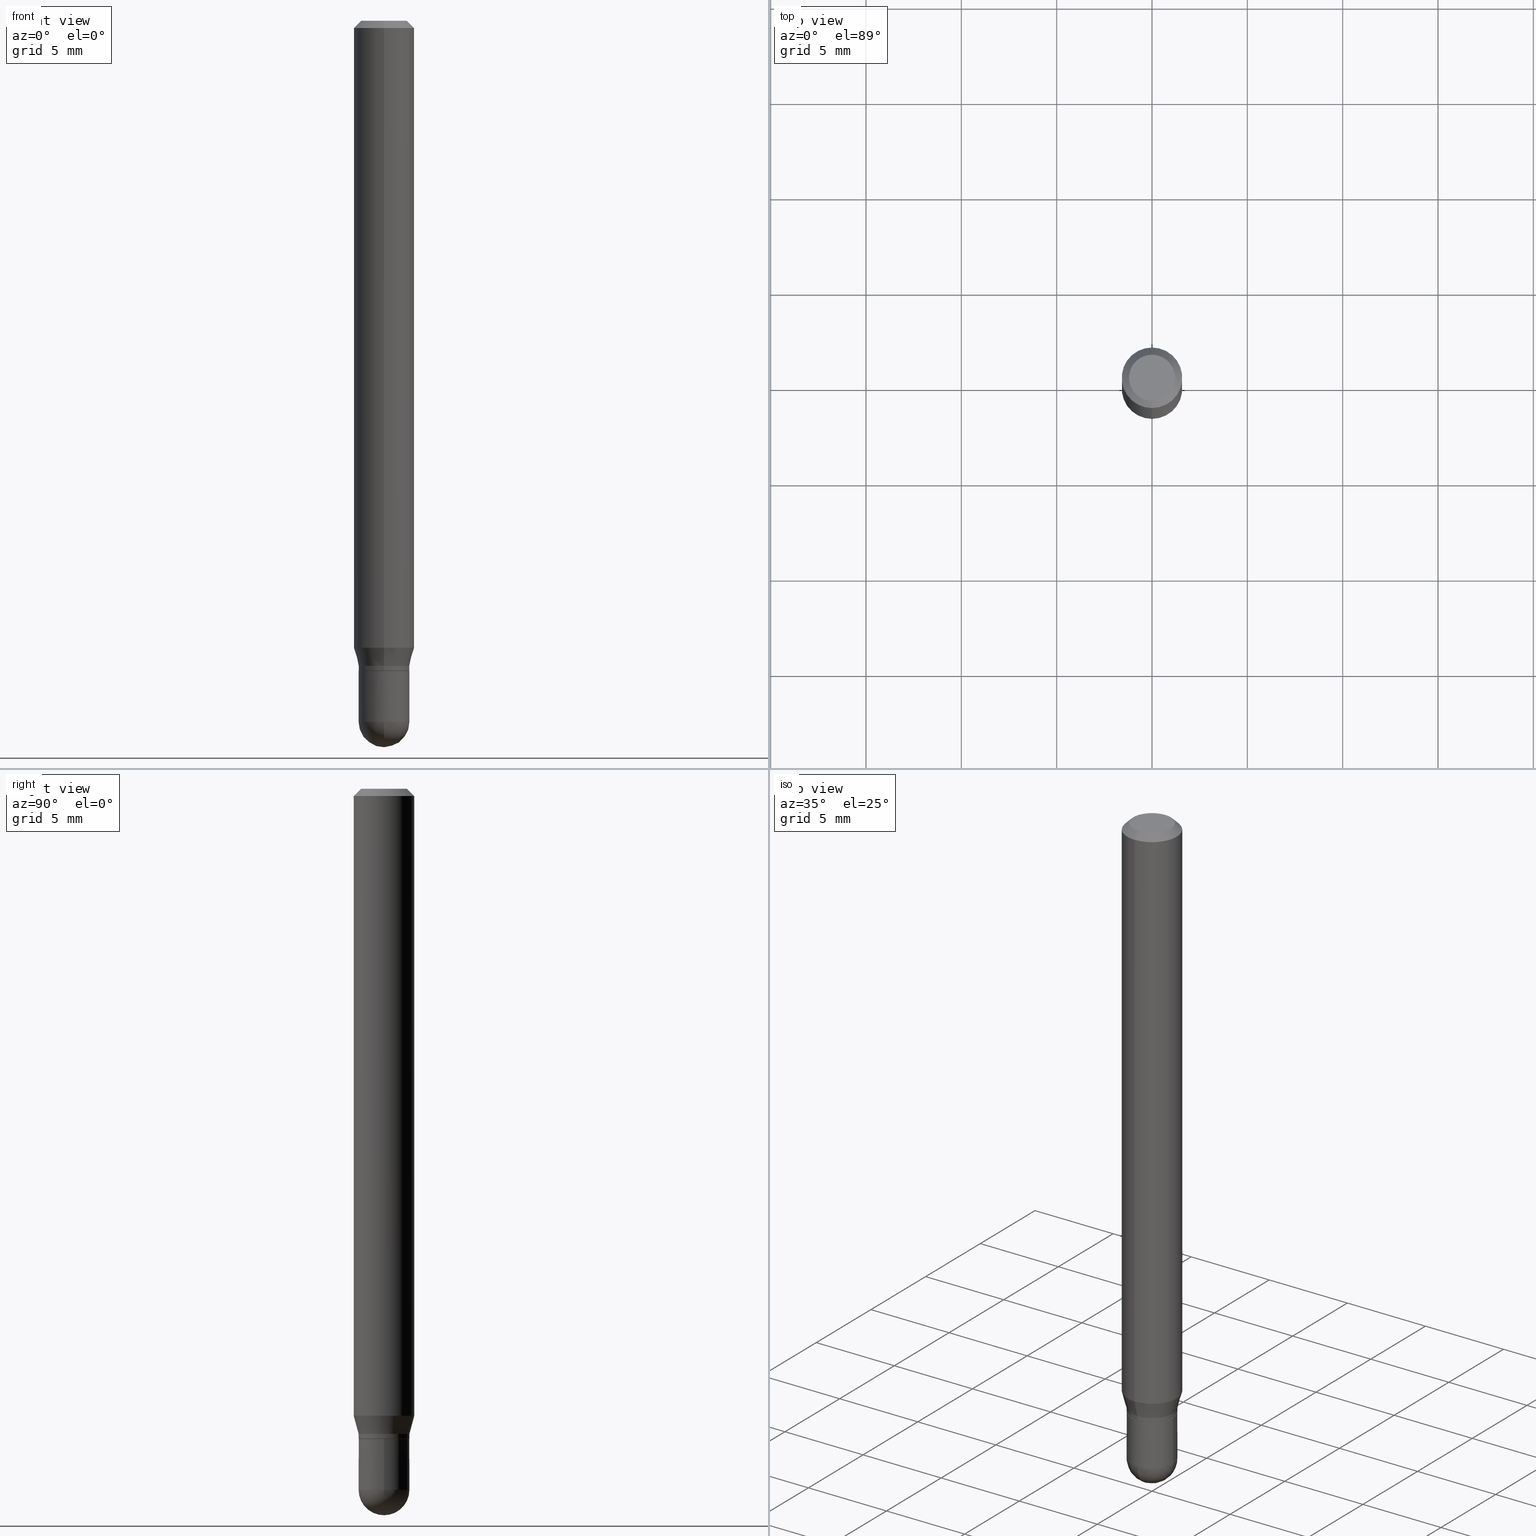
[diagram: canonical four-view strip — front | top / right | iso, engineering-drawing reading convention]
A machine part, canonical four-view strip (front | top / right | iso — engineering-drawing reading convention). The complete STEP part file that produces these views, byte-faithful:
ISO-10303-21;
HEADER;
FILE_DESCRIPTION (( 'STEP AP203' ),
    '1' );
FILE_NAME ('00735.STEP',
    '2024-03-07T18:09:48',
    ( '' ),
    ( '' ),
    'SwSTEP 2.0',
    'SolidWorks 2023',
    '' );
FILE_SCHEMA (( 'CONFIG_CONTROL_DESIGN' ));
ENDSEC;

DATA;
#1 = DIRECTION ( 'NONE',  ( -6.982962677686266711E-15, -1.000000000000000000, 5.253553833969737838E-15 ) ) ;
#2 = ORIENTED_EDGE ( 'NONE', *, *, #124, .F. ) ;
#3 = CARTESIAN_POINT ( 'NONE',  ( 0.000000000000000000, 0.000000000000000000, 0.000000000000000000 ) ) ;
#4 = CARTESIAN_POINT ( 'NONE',  ( 3.316907271900976096E-16, 0.04749999999999999362, -1.702721195745355787E-16 ) ) ;
#5 = ORIENTED_EDGE ( 'NONE', *, *, #448, .F. ) ;
#6 = DIRECTION ( 'NONE',  ( -6.982962677686266711E-15, -1.000000000000000000, 5.203519987931938617E-15 ) ) ;
#7 = ORIENTED_EDGE ( 'NONE', *, *, #29, .F. ) ;
#8 = AXIS2_PLACEMENT_3D ( 'NONE', #260, #219, #420 ) ;
#9 = PRODUCT_DEFINITION_FORMATION_WITH_SPECIFIED_SOURCE ( 'ANY', '', #250, .NOT_KNOWN. ) ;
#10 = CC_DESIGN_PERSON_AND_ORGANIZATION_ASSIGNMENT ( #265, #234, ( #9 ) ) ;
#11 = DIRECTION ( 'NONE',  ( -2.445568885019191806E-29, 3.491338020256645256E-15, 1.000000000000000000 ) ) ;
#12 = ORIENTED_EDGE ( 'NONE', *, *, #430, .F. ) ;
#13 = DIRECTION ( 'NONE',  ( -4.851104656540964275E-15, -0.7071067811865500152, -0.7071067811865450192 ) ) ;
#14 = VERTEX_POINT ( 'NONE', #481 ) ;
#15 = DIRECTION ( 'NONE',  ( -2.445568885019191806E-29, 3.491338020256645256E-15, 1.000000000000000000 ) ) ;
#16 = ORIENTED_EDGE ( 'NONE', *, *, #82, .T. ) ;
#17 = ADVANCED_FACE ( 'NONE', ( #282 ), #302, .T. ) ;
#18 = AXIS2_PLACEMENT_3D ( 'NONE', #505, #409, #331 ) ;
#19 = CIRCLE ( 'NONE', #90, 0.05249999999999991479 ) ;
#20 = DIRECTION ( 'NONE',  ( -6.982962677686266711E-15, -1.000000000000000000, 3.491338020256645651E-15 ) ) ;
#21 = DIRECTION ( 'NONE',  ( -6.982962677686266711E-15, -1.000000000000000000, 3.491338020256645651E-15 ) ) ;
#22 = DIRECTION ( 'NONE',  ( -2.445568885019191526E-29, 3.491338020256645256E-15, 1.000000000000000000 ) ) ;
#23 = APPROVAL ( #308, 'UNSPECIFIED' ) ;
#24 = DIRECTION ( 'NONE',  ( 1.839019923739591243E-15, 0.2588190451025236816, 0.9659258262890674240 ) ) ;
#25 = PERSON_AND_ORGANIZATION ( #397, #382 ) ;
#26 = CIRCLE ( 'NONE', #64, 0.04749999999999999362 ) ;
#27 = CIRCLE ( 'NONE', #390, 0.06250000000000000000 ) ;
#28 = DIRECTION ( 'NONE',  ( -4.937700262164674260E-15, -0.7071067811865632269, 0.7071067811865319186 ) ) ;
#29 = EDGE_CURVE ( 'NONE', #329, #239, #380, .T. ) ;
#30 = PERSON_AND_ORGANIZATION ( #397, #382 ) ;
#31 = CC_DESIGN_APPROVAL ( #467, ( #71 ) ) ;
#32 = DIRECTION ( 'NONE',  ( -2.445568885019191806E-29, 3.491338020256645256E-15, 1.000000000000000000 ) ) ;
#33 = ORIENTED_EDGE ( 'NONE', *, *, #223, .F. ) ;
#34 = VERTEX_POINT ( 'NONE', #459 ) ;
#35 = EDGE_CURVE ( 'NONE', #478, #251, #97, .T. ) ;
#36 = MANIFOLD_SOLID_BREP ( 'Body-Move/Copy2[1]', #366 ) ;
#37 = VERTEX_POINT ( 'NONE', #464 ) ;
#38 = AXIS2_PLACEMENT_3D ( 'NONE', #427, #463, #270 ) ;
#39 = CC_DESIGN_APPROVAL ( #51, ( #9 ) ) ;
#40 = VERTEX_POINT ( 'NONE', #91 ) ;
#41 = CARTESIAN_POINT ( 'NONE',  ( 3.665958397768609631E-29, -5.240436706112481047E-15, -1.500000000000000222 ) ) ;
#42 = ORIENTED_EDGE ( 'NONE', *, *, #116, .F. ) ;
#43 = DIRECTION ( 'NONE',  ( -2.445468806185136597E-29, 3.491481338843145583E-15, 1.000000000000000000 ) ) ;
#44 = EDGE_CURVE ( 'NONE', #37, #40, #460, .T. ) ;
#45 = CARTESIAN_POINT ( 'NONE',  ( 4.440892098500625669E-16, 0.06250000000000000000, -2.182086262660403285E-16 ) ) ;
#46 = LINE ( 'NONE', #363, #263 ) ;
#47 = VECTOR ( 'NONE', #24, 39.37007874015748143 ) ;
#48 = DIRECTION ( 'NONE',  ( 2.445568885019191806E-29, -3.491338020256645256E-15, -1.000000000000000000 ) ) ;
#49 = EDGE_LOOP ( 'NONE', ( #247, #351, #80, #491 ) ) ;
#50 = ORIENTED_EDGE ( 'NONE', *, *, #167, .T. ) ;
#51 = APPROVAL ( #343, 'UNSPECIFIED' ) ;
#52 = DIRECTION ( 'NONE',  ( -6.982962677686265922E-15, -1.000000000000000000, 3.483106191921935554E-15 ) ) ;
#53 = EDGE_LOOP ( 'NONE', ( #318, #369, #388, #470 ) ) ;
#54 = AXIS2_PLACEMENT_3D ( 'NONE', #228, #288, #267 ) ;
#55 = VECTOR ( 'NONE', #28, 39.37007874015748143 ) ;
#56 = ORIENTED_EDGE ( 'NONE', *, *, #44, .T. ) ;
#57 = DIRECTION ( 'NONE',  ( -6.982962677686265922E-15, -1.000000000000000000, 5.203519987931939406E-15 ) ) ;
#58 = ORIENTED_EDGE ( 'NONE', *, *, #506, .F. ) ;
#59 = CALENDAR_DATE ( 2024, 7, 3 ) ;
#60 = DIRECTION ( 'NONE',  ( -6.982962677686266711E-15, -1.000000000000000000, 3.491338020256645651E-15 ) ) ;
#61 = LINE ( 'NONE', #493, #170 ) ;
#62 = CARTESIAN_POINT ( 'NONE',  ( -3.631140592396529715E-16, -0.05200000000000468137, -1.341999999999999860 ) ) ;
#63 = CARTESIAN_POINT ( 'NONE',  ( 3.840629472727447874E-16, 0.04749999999999999362, -1.747056831868805136E-16 ) ) ;
#64 = AXIS2_PLACEMENT_3D ( 'NONE', #299, #15, #20 ) ;
#65 = LOCAL_TIME ( 13, 9, 48.00000000000000000, #179 ) ;
#66 = ADVANCED_FACE ( 'NONE', ( #342 ), #414, .T. ) ;
#67 = DIMENSIONAL_EXPONENTS ( 1.000000000000000000, 0.000000000000000000, 0.000000000000000000, 0.000000000000000000, 0.000000000000000000, 0.000000000000000000, 0.000000000000000000 ) ;
#68 = CARTESIAN_POINT ( 'NONE',  ( 3.668353327528789828E-31, -5.237007030384970941E-17, -0.01500000000000000812 ) ) ;
#69 = AXIS2_PLACEMENT_3D ( 'NONE', #413, #102, #138 ) ;
#70 = CIRCLE ( 'NONE', #402, 0.06250000000000000000 ) ;
#71 = PRODUCT_DEFINITION ( 'UNKNOWN', '', #9, #236 ) ;
#72 = VERTEX_POINT ( 'NONE', #424 ) ;
#73 = DIRECTION ( 'NONE',  ( -6.982962677686266711E-15, -1.000000000000000000, 5.253553833969737838E-15 ) ) ;
#74 = ORIENTED_EDGE ( 'NONE', *, *, #506, .T. ) ;
#75 = DIRECTION ( 'NONE',  ( 2.445568885019191245E-29, -3.491338020256645256E-15, -1.000000000000000000 ) ) ;
#76 = VERTEX_POINT ( 'NONE', #63 ) ;
#77 = CARTESIAN_POINT ( 'NONE',  ( 3.166227881522550846E-29, -4.520163734201902903E-15, -1.294679491924310977 ) ) ;
#78 = CLOSED_SHELL ( 'NONE', ( #175, #232, #17, #305, #160, #193, #86, #333, #240, #489, #217, #268 ) ) ;
#79 = AXIS2_PLACEMENT_3D ( 'NONE', #77, #11, #81 ) ;
#80 = ORIENTED_EDGE ( 'NONE', *, *, #285, .F. ) ;
#81 = DIRECTION ( 'NONE',  ( -6.982962677686265922E-15, -1.000000000000000000, 4.370956789862821150E-15 ) ) ;
#82 = EDGE_CURVE ( 'NONE', #209, #478, #61, .T. ) ;
#83 = CARTESIAN_POINT ( 'NONE',  ( -3.666055405785283712E-16, -0.05249999999999990785, 1.832952460634735762E-16 ) ) ;
#84 = CARTESIAN_POINT ( 'NONE',  ( 3.539816096952984843E-29, -5.053919237975452413E-15, -1.447499999999999787 ) ) ;
#85 = VECTOR ( 'NONE', #457, 39.37007874015748143 ) ;
#86 = ADVANCED_FACE ( 'NONE', ( #145 ), #298, .T. ) ;
#87 = DIRECTION ( 'NONE',  ( -2.445568885019191806E-29, 3.491338020256645256E-15, 1.000000000000000000 ) ) ;
#88 = DIRECTION ( 'NONE',  ( -2.445568885019191806E-29, 3.491338020256645256E-15, 1.000000000000000000 ) ) ;
#89 = VERTEX_POINT ( 'NONE', #222 ) ;
#90 = AXIS2_PLACEMENT_3D ( 'NONE', #122, #482, #6 ) ;
#91 = CARTESIAN_POINT ( 'NONE',  ( -0.05249999999999999806, -4.496708661077424547E-15, -1.447499999999999787 ) ) ;
#92 = CARTESIAN_POINT ( 'NONE',  ( -0.05249999999999999806, -4.496708661077424547E-15, -1.342000000000000082 ) ) ;
#93 = CC_DESIGN_PERSON_AND_ORGANIZATION_ASSIGNMENT ( #261, #100, ( #9 ) ) ;
#94 = CALENDAR_DATE ( 2024, 7, 3 ) ;
#95 = DIRECTION ( 'NONE',  ( -2.445568885019191806E-29, 3.491338020256645256E-15, 1.000000000000000000 ) ) ;
#96 =( NAMED_UNIT ( * ) SI_UNIT ( $, .STERADIAN. ) SOLID_ANGLE_UNIT ( ) );
#97 = LINE ( 'NONE', #190, #233 ) ;
#98 = AXIS2_PLACEMENT_3D ( 'NONE', #214, #131, #286 ) ;
#99 = EDGE_CURVE ( 'NONE', #76, #34, #346, .T. ) ;
#100 = PERSON_AND_ORGANIZATION_ROLE ( 'creator' ) ;
#101 = AXIS2_PLACEMENT_3D ( 'NONE', #3, #317, #184 ) ;
#102 = DIRECTION ( 'NONE',  ( -2.445568885019191806E-29, 3.491338020256645256E-15, 1.000000000000000000 ) ) ;
#103 = APPROVAL_ROLE ( '' ) ;
#104 =( LENGTH_UNIT ( ) NAMED_UNIT ( * ) SI_UNIT ( $, .METRE. ) );
#105 = COORDINATED_UNIVERSAL_TIME_OFFSET ( 5, 0, .BEHIND. ) ;
#106 = CC_DESIGN_DATE_AND_TIME_ASSIGNMENT ( #428, #229, ( #128 ) ) ;
#107 =( CONVERSION_BASED_UNIT ( 'INCH', #151 ) LENGTH_UNIT ( ) NAMED_UNIT ( #67 ) );
#108 = ORIENTED_EDGE ( 'NONE', *, *, #29, .T. ) ;
#109 = AXIS2_PLACEMENT_3D ( 'NONE', #307, #189, #423 ) ;
#110 = FACE_OUTER_BOUND ( 'NONE', #385, .T. ) ;
#111 = ORIENTED_EDGE ( 'NONE', *, *, #257, .F. ) ;
#112 = PLANE ( 'NONE',  #117 ) ;
#113 = ORIENTED_EDGE ( 'NONE', *, *, #116, .T. ) ;
#114 = CARTESIAN_POINT ( 'NONE',  ( 3.668353327528789828E-31, -5.237007030384970941E-17, -0.01500000000000000812 ) ) ;
#115 = VERTEX_POINT ( 'NONE', #458 ) ;
#116 = EDGE_CURVE ( 'NONE', #76, #194, #136, .T. ) ;
#117 = AXIS2_PLACEMENT_3D ( 'NONE', #4, #75, #119 ) ;
#118 = VECTOR ( 'NONE', #141, 39.37007874015748143 ) ;
#119 = DIRECTION ( 'NONE',  ( 6.982962677686265922E-15, 1.000000000000000000, -3.491338020256645256E-15 ) ) ;
#120 = ORIENTED_EDGE ( 'NONE', *, *, #291, .F. ) ;
#121 = DIRECTION ( 'NONE',  ( 6.982962677686265922E-15, 1.000000000000000000, 0.000000000000000000 ) ) ;
#122 = CARTESIAN_POINT ( 'NONE',  ( 3.280730659253245704E-29, -4.683629954174290565E-15, -1.341500000000000137 ) ) ;
#123 = ORIENTED_EDGE ( 'NONE', *, *, #134, .T. ) ;
#124 = EDGE_CURVE ( 'NONE', #115, #209, #367, .T. ) ;
#125 = CARTESIAN_POINT ( 'NONE',  ( 3.281953443695754904E-29, -4.685375623184418108E-15, -1.342000000000000082 ) ) ;
#126 = EDGE_LOOP ( 'NONE', ( #7, #508, #218, #195 ) ) ;
#127 = CONICAL_SURFACE ( 'NONE', #417, 0.05199999999999999067, 0.7853981633974739252 ) ;
#128 = SECURITY_CLASSIFICATION ( '', '', #474 ) ;
#129 = ORIENTED_EDGE ( 'NONE', *, *, #319, .T. ) ;
#130 = CYLINDRICAL_SURFACE ( 'NONE', #327, 0.05249999999999990785 ) ;
#131 = DIRECTION ( 'NONE',  ( -2.445568885019191806E-29, 3.491338020256645256E-15, 1.000000000000000000 ) ) ;
#132 = DIRECTION ( 'NONE',  ( -6.982962677686265922E-15, -1.000000000000000000, 5.203519987931939406E-15 ) ) ;
#133 = ORIENTED_EDGE ( 'NONE', *, *, #134, .F. ) ;
#134 = EDGE_CURVE ( 'NONE', #251, #34, #146, .T. ) ;
#135 = PERSON_AND_ORGANIZATION_ROLE ( 'design_owner' ) ;
#136 = CIRCLE ( 'NONE', #18, 0.04749999999999999362 ) ;
#137 = VECTOR ( 'NONE', #162, 39.37007874015748143 ) ;
#138 = DIRECTION ( 'NONE',  ( -6.982962677686265922E-15, -1.000000000000000000, 3.491338020256645256E-15 ) ) ;
#139 = DATE_AND_TIME ( #94, #334 ) ;
#140 = CC_DESIGN_PERSON_AND_ORGANIZATION_ASSIGNMENT ( #143, #135, ( #250 ) ) ;
#141 = DIRECTION ( 'NONE',  ( -2.445568885019191526E-29, 3.491338020256645256E-15, 1.000000000000000000 ) ) ;
#142 = ORIENTED_EDGE ( 'NONE', *, *, #182, .T. ) ;
#143 = PERSON_AND_ORGANIZATION ( #397, #382 ) ;
#144 = CARTESIAN_POINT ( 'NONE',  ( 3.281953443695754904E-29, -4.685375623184418108E-15, -1.342000000000000082 ) ) ;
#145 = FACE_OUTER_BOUND ( 'NONE', #469, .T. ) ;
#146 = CIRCLE ( 'NONE', #471, 0.06250000000000000000 ) ;
#147 = AXIS2_PLACEMENT_3D ( 'NONE', #243, #321, #121 ) ;
#148 = COORDINATED_UNIVERSAL_TIME_OFFSET ( 5, 0, .BEHIND. ) ;
#149 = CARTESIAN_POINT ( 'NONE',  ( 3.281953443695754904E-29, -4.685375623184418108E-15, -1.342000000000000082 ) ) ;
#150 = PERSON_AND_ORGANIZATION_ROLE ( 'classification_officer' ) ;
#151 = LENGTH_MEASURE_WITH_UNIT ( LENGTH_MEASURE( 0.02539999999999999897 ), #104 );
#152 = ORIENTED_EDGE ( 'NONE', *, *, #475, .T. ) ;
#153 = MECHANICAL_CONTEXT ( 'NONE', #206, 'mechanical' ) ;
#154 = VERTEX_POINT ( 'NONE', #92 ) ;
#155 = AXIS2_PLACEMENT_3D ( 'NONE', #254, #370, #21 ) ;
#156 = CIRCLE ( 'NONE', #303, 0.05199999999999999067 ) ;
#157 = CARTESIAN_POINT ( 'NONE',  ( 3.730349362740854201E-16, 0.05249999999999532818, -1.341500000000000359 ) ) ;
#158 = ORIENTED_EDGE ( 'NONE', *, *, #364, .T. ) ;
#159 = DIRECTION ( 'NONE',  ( -6.982962677686265922E-15, -1.000000000000000000, 3.483106191921935554E-15 ) ) ;
#160 = ADVANCED_FACE ( 'NONE', ( #455 ), #252, .T. ) ;
#161 = ORIENTED_EDGE ( 'NONE', *, *, #223, .T. ) ;
#162 = DIRECTION ( 'NONE',  ( -2.445568885019191526E-29, 3.491338020256645256E-15, 1.000000000000000000 ) ) ;
#163 = ORIENTED_EDGE ( 'NONE', *, *, #99, .F. ) ;
#164 = CARTESIAN_POINT ( 'NONE',  ( 3.535326473934793753E-29, -5.060348633670977366E-15, -1.447500000000000009 ) ) ;
#165 = AXIS2_PLACEMENT_3D ( 'NONE', #349, #509, #473 ) ;
#166 = CARTESIAN_POINT ( 'NONE',  ( 3.166227881522550846E-29, -4.520163734201902903E-15, -1.294679491924310977 ) ) ;
#167 = EDGE_CURVE ( 'NONE', #72, #239, #216, .T. ) ;
#168 = FACE_OUTER_BOUND ( 'NONE', #272, .T. ) ;
#169 = ORIENTED_EDGE ( 'NONE', *, *, #340, .F. ) ;
#170 = VECTOR ( 'NONE', #501, 39.37007874015748143 ) ;
#171 = AXIS2_PLACEMENT_3D ( 'NONE', #315, #48, #204 ) ;
#172 = CC_DESIGN_SECURITY_CLASSIFICATION ( #128, ( #9 ) ) ;
#173 = CARTESIAN_POINT ( 'NONE',  ( 3.257497754845563606E-29, -4.650462242981852244E-15, -1.332000000000000073 ) ) ;
#174 = ORIENTED_EDGE ( 'NONE', *, *, #383, .T. ) ;
#175 = ADVANCED_FACE ( 'NONE', ( #446 ), #450, .T. ) ;
#176 = CARTESIAN_POINT ( 'NONE',  ( -3.631140592396529715E-16, -0.05200000000000468137, -1.341999999999999860 ) ) ;
#177 = VERTEX_POINT ( 'NONE', #176 ) ;
#178 = CARTESIAN_POINT ( 'NONE',  ( 4.364351673553919652E-16, 0.06249999999999995143, -0.01500000000000022669 ) ) ;
#179 = COORDINATED_UNIVERSAL_TIME_OFFSET ( 5, 0, .BEHIND. ) ;
#180 = DIRECTION ( 'NONE',  ( -6.982962677686265922E-15, -1.000000000000000000, 5.203519987931939406E-15 ) ) ;
#181 = AXIS2_PLACEMENT_3D ( 'NONE', #164, #248, #389 ) ;
#182 = EDGE_CURVE ( 'NONE', #194, #76, #26, .T. ) ;
#183 = CARTESIAN_POINT ( 'NONE',  ( 3.281819137900453057E-29, -4.685567956727500961E-15, -1.342000000000000082 ) ) ;
#184 = DIRECTION ( 'NONE',  ( 1.000000000000000000, -6.982962677686265922E-15, 4.876176775795935232E-29 ) ) ;
#185 = CARTESIAN_POINT ( 'NONE',  ( 0.000000000000000000, 0.000000000000000000, 0.000000000000000000 ) ) ;
#186 = DIRECTION ( 'NONE',  ( -2.445568885019191526E-29, 3.491338020256645256E-15, 1.000000000000000000 ) ) ;
#187 = DATE_AND_TIME ( #377, #487 ) ;
#188 = DATE_TIME_ROLE ( 'creation_date' ) ;
#189 = DIRECTION ( 'NONE',  ( -2.445468806185136597E-29, 3.491481338843145583E-15, 1.000000000000000000 ) ) ;
#190 = CARTESIAN_POINT ( 'NONE',  ( -4.364351673553916201E-16, -0.06250000000000000000, 2.182086262660403285E-16 ) ) ;
#191 = APPROVAL_PERSON_ORGANIZATION ( #453, #467, #221 ) ;
#192 = CARTESIAN_POINT ( 'NONE',  ( 3.730349362740518935E-16, 0.05249999999999990785, -1.832952460634735762E-16 ) ) ;
#193 = ADVANCED_FACE ( 'NONE', ( #168 ), #344, .T. ) ;
#194 = VERTEX_POINT ( 'NONE', #410 ) ;
#195 = ORIENTED_EDGE ( 'NONE', *, *, #383, .F. ) ;
#196 = CARTESIAN_POINT ( 'NONE',  ( -3.730349362740171836E-16, -0.05250000000000507733, -1.447499999999999565 ) ) ;
#197 = ORIENTED_EDGE ( 'NONE', *, *, #340, .T. ) ;
#198 = CARTESIAN_POINT ( 'NONE',  ( 3.535326473934793753E-29, -5.060348633670977366E-15, -1.447500000000000009 ) ) ;
#199 = APPROVAL_PERSON_ORGANIZATION ( #425, #23, #416 ) ;
#200 = EDGE_CURVE ( 'NONE', #115, #89, #220, .T. ) ;
#201 = ORIENTED_EDGE ( 'NONE', *, *, #511, .T. ) ;
#202 = SPHERICAL_SURFACE ( 'NONE', #181, 0.05250000000000002581 ) ;
#203 = EDGE_LOOP ( 'NONE', ( #12, #42, #387, #213 ) ) ;
#204 = DIRECTION ( 'NONE',  ( 6.982962677686265922E-15, 1.000000000000000000, -3.483106191921935554E-15 ) ) ;
#205 = DIRECTION ( 'NONE',  ( -2.445568885019191806E-29, 3.491338020256645256E-15, 1.000000000000000000 ) ) ;
#206 = APPLICATION_CONTEXT ( 'configuration controlled 3d designs of mechanical parts and assemblies' ) ;
#207 = CC_DESIGN_PERSON_AND_ORGANIZATION_ASSIGNMENT ( #30, #150, ( #128 ) ) ;
#208 = DIRECTION ( 'NONE',  ( -2.445468806185136877E-29, 3.491481338843145188E-15, 1.000000000000000000 ) ) ;
#209 = VERTEX_POINT ( 'NONE', #332 ) ;
#210 = CIRCLE ( 'NONE', #224, 0.05250000000000002581 ) ;
#211 = DIRECTION ( 'NONE',  ( -1.000000000000000000, 7.105427357601001070E-15, -4.926315508542082329E-29 ) ) ;
#212 = CARTESIAN_POINT ( 'NONE',  ( 3.280730659253245704E-29, -4.683629954174290565E-15, -1.341500000000000137 ) ) ;
#213 = ORIENTED_EDGE ( 'NONE', *, *, #448, .T. ) ;
#214 = CARTESIAN_POINT ( 'NONE',  ( 3.257497754845563606E-29, -4.650462242981852244E-15, -1.332000000000000073 ) ) ;
#215 = EDGE_LOOP ( 'NONE', ( #486, #435, #129, #244, #58 ) ) ;
#216 = CIRCLE ( 'NONE', #444, 0.05249999999999991479 ) ;
#217 = ADVANCED_FACE ( 'NONE', ( #295 ), #502, .T. ) ;
#218 = ORIENTED_EDGE ( 'NONE', *, *, #476, .T. ) ;
#219 = DIRECTION ( 'NONE',  ( -2.445468806185136597E-29, 3.491481338843145583E-15, 1.000000000000000000 ) ) ;
#220 = LINE ( 'NONE', #373, #47 ) ;
#221 = APPROVAL_ROLE ( '' ) ;
#222 = CARTESIAN_POINT ( 'NONE',  ( 4.440892098500943678E-16, 0.06249999999999550360, -1.294679491924311199 ) ) ;
#223 = EDGE_CURVE ( 'NONE', #309, #154, #241, .T. ) ;
#224 = AXIS2_PLACEMENT_3D ( 'NONE', #198, #211, #246 ) ;
#225 = APPROVAL_DATE_TIME ( #187, #23 ) ;
#226 = APPLICATION_PROTOCOL_DEFINITION ( 'international standard', 'config_control_design', 1994, #206 ) ;
#227 = CYLINDRICAL_SURFACE ( 'NONE', #431, 0.06250000000000000000 ) ;
#228 = CARTESIAN_POINT ( 'NONE',  ( 3.535326473934793753E-29, -5.060348633670977366E-15, -1.447500000000000009 ) ) ;
#229 = DATE_TIME_ROLE ( 'classification_date' ) ;
#230 = FACE_OUTER_BOUND ( 'NONE', #365, .T. ) ;
#231 = DIRECTION ( 'NONE',  ( 6.982962677686265922E-15, 1.000000000000000000, -3.483106191921935554E-15 ) ) ;
#232 = ADVANCED_FACE ( 'NONE', ( #110 ), #127, .T. ) ;
#233 = VECTOR ( 'NONE', #186, 39.37007874015748143 ) ;
#234 = PERSON_AND_ORGANIZATION_ROLE ( 'design_supplier' ) ;
#235 = ORIENTED_EDGE ( 'NONE', *, *, #124, .T. ) ;
#236 = DESIGN_CONTEXT ( 'detailed design', #339, 'design' ) ;
#237 = FACE_OUTER_BOUND ( 'NONE', #477, .T. ) ;
#238 = VERTEX_POINT ( 'NONE', #196 ) ;
#239 = VERTEX_POINT ( 'NONE', #157 ) ;
#240 = ADVANCED_FACE ( 'NONE', ( #245 ), #112, .F. ) ;
#241 = CIRCLE ( 'NONE', #310, 0.05249999999999999806 ) ;
#242 = AXIS2_PLACEMENT_3D ( 'NONE', #144, #500, #468 ) ;
#243 = CARTESIAN_POINT ( 'NONE',  ( 3.535326473934793753E-29, -5.060348633670977366E-15, -1.447500000000000009 ) ) ;
#244 = ORIENTED_EDGE ( 'NONE', *, *, #291, .T. ) ;
#245 = FACE_OUTER_BOUND ( 'NONE', #255, .T. ) ;
#246 = DIRECTION ( 'NONE',  ( -7.105427357601001070E-15, -1.000000000000000000, 0.000000000000000000 ) ) ;
#247 = ORIENTED_EDGE ( 'NONE', *, *, #415, .F. ) ;
#248 = DIRECTION ( 'NONE',  ( -1.000000000000000000, 6.982962677686265133E-15, -4.883557194083112340E-29 ) ) ;
#249 = CIRCLE ( 'NONE', #147, 0.05250000000000002581 ) ;
#250 = PRODUCT ( '00735', '00735', '', ( #153 ) ) ;
#251 = VERTEX_POINT ( 'NONE', #281 ) ;
#252 = CONICAL_SURFACE ( 'NONE', #98, 0.05249999999999990091, 0.2617993877991489637 ) ;
#253 = DIRECTION ( 'NONE',  ( 4.937700262164548042E-15, 0.7071067811865451302, -0.7071067811865499042 ) ) ;
#254 = CARTESIAN_POINT ( 'NONE',  ( 0.000000000000000000, 0.000000000000000000, 0.000000000000000000 ) ) ;
#255 = EDGE_LOOP ( 'NONE', ( #113, #142 ) ) ;
#256 = APPROVAL_DATE_TIME ( #139, #467 ) ;
#257 = EDGE_CURVE ( 'NONE', #89, #34, #398, .T. ) ;
#258 = DIRECTION ( 'NONE',  ( -2.445568885019191806E-29, 3.491338020256645256E-15, 1.000000000000000000 ) ) ;
#259 = DIRECTION ( 'NONE',  ( -6.982962677686266711E-15, -1.000000000000000000, 5.253553833969737838E-15 ) ) ;
#260 = CARTESIAN_POINT ( 'NONE',  ( 3.539816096952984843E-29, -5.053919237975452413E-15, -1.447499999999999787 ) ) ;
#261 = PERSON_AND_ORGANIZATION ( #397, #382 ) ;
#262 = FACE_OUTER_BOUND ( 'NONE', #433, .T. ) ;
#263 = VECTOR ( 'NONE', #13, 39.37007874015748143 ) ;
#264 = DIRECTION ( 'NONE',  ( 2.445568885019191806E-29, -3.491338020256645256E-15, -1.000000000000000000 ) ) ;
#265 = PERSON_AND_ORGANIZATION ( #397, #382 ) ;
#266 = PERSON_AND_ORGANIZATION ( #397, #382 ) ;
#267 = DIRECTION ( 'NONE',  ( 6.982962677686265133E-15, 1.000000000000000000, -5.203519987931926784E-15 ) ) ;
#268 = ADVANCED_FACE ( 'NONE', ( #330 ), #130, .T. ) ;
#269 = PLANE ( 'NONE',  #38 ) ;
#270 = DIRECTION ( 'NONE',  ( -1.000000000000000000, 6.982962677686265922E-15, -4.876176775795935793E-29 ) ) ;
#271 = CIRCLE ( 'NONE', #374, 0.05249999999999999806 ) ;
#272 = EDGE_LOOP ( 'NONE', ( #354, #235, #16, #392 ) ) ;
#273 = ADVANCED_FACE ( 'NONE', ( #237 ), #269, .F. ) ;
#274 = CARTESIAN_POINT ( 'NONE',  ( 3.281953443695754904E-29, -4.685375623184418108E-15, -1.342000000000000082 ) ) ;
#275 = ORIENTED_EDGE ( 'NONE', *, *, #82, .F. ) ;
#276 = ORIENTED_EDGE ( 'NONE', *, *, #442, .F. ) ;
#277 = LINE ( 'NONE', #83, #137 ) ;
#278 = ORIENTED_EDGE ( 'NONE', *, *, #511, .F. ) ;
#279 = CIRCLE ( 'NONE', #452, 0.05199999999999999067 ) ;
#280 = DIRECTION ( 'NONE',  ( 1.000000000000000000, -6.982962677686268288E-15, 0.000000000000000000 ) ) ;
#281 = CARTESIAN_POINT ( 'NONE',  ( -4.364351673553912750E-16, -0.06250000000000005551, -0.01499999999999979128 ) ) ;
#282 = FACE_OUTER_BOUND ( 'NONE', #451, .T. ) ;
#283 = EDGE_CURVE ( 'NONE', #209, #115, #325, .T. ) ;
#284 = APPROVAL_PERSON_ORGANIZATION ( #25, #51, #103 ) ;
#285 = EDGE_CURVE ( 'NONE', #40, #238, #353, .T. ) ;
#286 = DIRECTION ( 'NONE',  ( -6.982962677686265922E-15, -1.000000000000000000, 5.203519987931939406E-15 ) ) ;
#287 = EDGE_LOOP ( 'NONE', ( #326, #174, #512, #2 ) ) ;
#288 = DIRECTION ( 'NONE',  ( -1.000000000000000000, 6.982962677686265133E-15, -4.883557194083112340E-29 ) ) ;
#289 = CARTESIAN_POINT ( 'NONE',  ( 3.668353327528789828E-31, -5.237007030384970941E-17, -0.01500000000000000812 ) ) ;
#290 = ORIENTED_EDGE ( 'NONE', *, *, #35, .F. ) ;
#291 = EDGE_CURVE ( 'NONE', #14, #309, #498, .T. ) ;
#292 = VECTOR ( 'NONE', #253, 39.37007874015748143 ) ;
#293 = CONICAL_SURFACE ( 'NONE', #171, 0.06250000000000000000, 0.7853981633974483900 ) ;
#294 = APPLICATION_PROTOCOL_DEFINITION ( 'international standard', 'config_control_design', 1994, #339 ) ;
#295 = FACE_OUTER_BOUND ( 'NONE', #126, .T. ) ;
#296 = COORDINATED_UNIVERSAL_TIME_OFFSET ( 5, 0, .BEHIND. ) ;
#297 = CARTESIAN_POINT ( 'NONE',  ( 0.05249999999999999806, -3.666055405785289629E-16, 2.559992807292866011E-30 ) ) ;
#298 = CYLINDRICAL_SURFACE ( 'NONE', #69, 0.06250000000000000000 ) ;
#299 = CARTESIAN_POINT ( 'NONE',  ( 2.168517044020812556E-46, -3.095813841001253265E-32, -8.867127224689869875E-18 ) ) ;
#300 = DIRECTION ( 'NONE',  ( 1.000000000000000000, -6.982962677686268288E-15, 0.000000000000000000 ) ) ;
#301 = APPROVAL_STATUS ( 'not_yet_approved' ) ;
#302 = CONICAL_SURFACE ( 'NONE', #449, 0.06250000000000000000, 0.7853981633974483900 ) ;
#303 = AXIS2_PLACEMENT_3D ( 'NONE', #149, #462, #306 ) ;
#304 = CARTESIAN_POINT ( 'NONE',  ( 3.694822225952848174E-16, 0.05199999999999530692, -1.342000000000000304 ) ) ;
#305 = ADVANCED_FACE ( 'NONE', ( #262 ), #227, .T. ) ;
#306 = DIRECTION ( 'NONE',  ( -6.982962677686266711E-15, -1.000000000000000000, 5.253553833969737838E-15 ) ) ;
#307 = CARTESIAN_POINT ( 'NONE',  ( 3.539816096952984843E-29, -5.053919237975452413E-15, -1.447499999999999787 ) ) ;
#308 = APPROVAL_STATUS ( 'not_yet_approved' ) ;
#309 = VERTEX_POINT ( 'NONE', #479 ) ;
#310 = AXIS2_PLACEMENT_3D ( 'NONE', #183, #422, #443 ) ;
#311 = AXIS2_PLACEMENT_3D ( 'NONE', #386, #32, #180 ) ;
#312 = DATE_AND_TIME ( #426, #65 ) ;
#313 = VERTEX_POINT ( 'NONE', #41 ) ;
#314 = ORIENTED_EDGE ( 'NONE', *, *, #35, .T. ) ;
#315 = CARTESIAN_POINT ( 'NONE',  ( 3.668353327528789828E-31, -5.237007030384970941E-17, -0.01500000000000000812 ) ) ;
#316 = ORIENTED_EDGE ( 'NONE', *, *, #497, .T. ) ;
#317 = DIRECTION ( 'NONE',  ( -2.445468806185136597E-29, 3.491481338843145583E-15, 1.000000000000000000 ) ) ;
#318 = ORIENTED_EDGE ( 'NONE', *, *, #400, .F. ) ;
#319 = EDGE_CURVE ( 'NONE', #238, #14, #480, .T. ) ;
#320 = LOCAL_TIME ( 13, 9, 48.00000000000000000, #296 ) ;
#321 = DIRECTION ( 'NONE',  ( 1.000000000000000000, -6.982962677686265922E-15, 4.883557194083112340E-29 ) ) ;
#322 = ORIENTED_EDGE ( 'NONE', *, *, #283, .T. ) ;
#323 = CARTESIAN_POINT ( 'NONE',  ( 3.712585794346847736E-16, 0.05199999999999530692, -1.342000000000000304 ) ) ;
#324 = ADVANCED_FACE ( 'NONE', ( #396 ), #393, .T. ) ;
#325 = CIRCLE ( 'NONE', #311, 0.05249999999999990091 ) ;
#326 = ORIENTED_EDGE ( 'NONE', *, *, #497, .F. ) ;
#327 = AXIS2_PLACEMENT_3D ( 'NONE', #492, #258, #60 ) ;
#328 = CC_DESIGN_APPROVAL ( #23, ( #128 ) ) ;
#329 = VERTEX_POINT ( 'NONE', #323 ) ;
#330 = FACE_OUTER_BOUND ( 'NONE', #287, .T. ) ;
#331 = DIRECTION ( 'NONE',  ( -6.982962677686266711E-15, -1.000000000000000000, 3.491338020256645651E-15 ) ) ;
#332 = CARTESIAN_POINT ( 'NONE',  ( -3.666055405784957321E-16, -0.05250000000000455691, -1.331999999999999851 ) ) ;
#333 = ADVANCED_FACE ( 'NONE', ( #440 ), #293, .T. ) ;
#334 = LOCAL_TIME ( 13, 9, 48.00000000000000000, #461 ) ;
#335 =( NAMED_UNIT ( * ) PLANE_ANGLE_UNIT ( ) SI_UNIT ( $, .RADIAN. ) );
#336 = DIRECTION ( 'NONE',  ( -2.445568885019191806E-29, 3.491338020256645256E-15, 1.000000000000000000 ) ) ;
#337 = LINE ( 'NONE', #62, #55 ) ;
#338 = APPROVAL_DATE_TIME ( #312, #51 ) ;
#339 = APPLICATION_CONTEXT ( 'configuration controlled 3d designs of mechanical parts and assemblies' ) ;
#340 = EDGE_CURVE ( 'NONE', #478, #89, #472, .T. ) ;
#341 = PLANE ( 'NONE',  #242 ) ;
#342 = FACE_OUTER_BOUND ( 'NONE', #53, .T. ) ;
#343 = APPROVAL_STATUS ( 'not_yet_approved' ) ;
#344 = CONICAL_SURFACE ( 'NONE', #352, 0.05249999999999990091, 0.2617993877991489637 ) ;
#345 = CARTESIAN_POINT ( 'NONE',  ( -4.364351673553597698E-16, -0.06250000000000449640, -1.294679491924310755 ) ) ;
#346 = LINE ( 'NONE', #178, #292 ) ;
#347 = ORIENTED_EDGE ( 'NONE', *, *, #257, .T. ) ;
#348 = PRODUCT_RELATED_PRODUCT_CATEGORY ( 'detail', '', ( #250 ) ) ;
#349 = CARTESIAN_POINT ( 'NONE',  ( 0.000000000000000000, 0.000000000000000000, 0.000000000000000000 ) ) ;
#350 = DIRECTION ( 'NONE',  ( -6.982962677686265922E-15, -1.000000000000000000, 3.491338020256645256E-15 ) ) ;
#351 = ORIENTED_EDGE ( 'NONE', *, *, #400, .T. ) ;
#352 = AXIS2_PLACEMENT_3D ( 'NONE', #173, #447, #57 ) ;
#353 = CIRCLE ( 'NONE', #361, 0.05249999999999999806 ) ;
#354 = ORIENTED_EDGE ( 'NONE', *, *, #200, .F. ) ;
#355 = LINE ( 'NONE', #399, #496 ) ;
#356 = ORIENTED_EDGE ( 'NONE', *, *, #283, .F. ) ;
#357 = CYLINDRICAL_SURFACE ( 'NONE', #101, 0.05249999999999999806 ) ;
#358 = ADVANCED_FACE ( 'NONE', ( #360 ), #202, .T. ) ;
#359 = ORIENTED_EDGE ( 'NONE', *, *, #167, .F. ) ;
#360 = FACE_OUTER_BOUND ( 'NONE', #49, .T. ) ;
#361 = AXIS2_PLACEMENT_3D ( 'NONE', #466, #379, #384 ) ;
#362 = DIRECTION ( 'NONE',  ( -2.445468806185136597E-29, 3.491481338843145583E-15, 1.000000000000000000 ) ) ;
#363 = CARTESIAN_POINT ( 'NONE',  ( -4.287811248607203282E-16, -0.06250000000000005551, -0.01499999999999979128 ) ) ;
#364 = EDGE_CURVE ( 'NONE', #89, #478, #70, .T. ) ;
#365 = EDGE_LOOP ( 'NONE', ( #278, #276 ) ) ;
#366 = CLOSED_SHELL ( 'NONE', ( #456, #358, #273, #66, #324 ) ) ;
#367 = CIRCLE ( 'NONE', #429, 0.05249999999999990091 ) ;
#368 = DIRECTION ( 'NONE',  ( -6.982962677686266711E-15, -1.000000000000000000, 5.203519987931938617E-15 ) ) ;
#369 = ORIENTED_EDGE ( 'NONE', *, *, #415, .T. ) ;
#370 = DIRECTION ( 'NONE',  ( -2.445568885019191806E-29, 3.491338020256645256E-15, 1.000000000000000000 ) ) ;
#371 = ORIENTED_EDGE ( 'NONE', *, *, #394, .F. ) ;
#372 = CC_DESIGN_PERSON_AND_ORGANIZATION_ASSIGNMENT ( #266, #412, ( #71 ) ) ;
#373 = CARTESIAN_POINT ( 'NONE',  ( 3.730349362740843847E-16, 0.05249999999999524491, -1.332000000000000517 ) ) ;
#374 = AXIS2_PLACEMENT_3D ( 'NONE', #419, #432, #300 ) ;
#375 = CC_DESIGN_DATE_AND_TIME_ASSIGNMENT ( #378, #188, ( #71 ) ) ;
#376 = MANIFOLD_SOLID_BREP ( 'Body-Move/Copy2[2]', #78 ) ;
#377 = CALENDAR_DATE ( 2024, 7, 3 ) ;
#378 = DATE_AND_TIME ( #59, #320 ) ;
#379 = DIRECTION ( 'NONE',  ( -2.445468806185136597E-29, 3.491481338843145583E-15, 1.000000000000000000 ) ) ;
#380 = LINE ( 'NONE', #304, #494 ) ;
#381 = UNCERTAINTY_MEASURE_WITH_UNIT (LENGTH_MEASURE( 1.000000000000000082E-05 ), #107, 'distance_accuracy_value', 'NONE');
#382 = ORGANIZATION ( 'UNSPECIFIED', 'UNSPECIFIED', '' ) ;
#383 = EDGE_CURVE ( 'NONE', #239, #72, #19, .T. ) ;
#384 = DIRECTION ( 'NONE',  ( 1.000000000000000000, -6.982962677686268288E-15, 0.000000000000000000 ) ) ;
#385 = EDGE_LOOP ( 'NONE', ( #201, #108, #359, #395 ) ) ;
#386 = CARTESIAN_POINT ( 'NONE',  ( 3.257497754845563606E-29, -4.650462242981852244E-15, -1.332000000000000073 ) ) ;
#387 = ORIENTED_EDGE ( 'NONE', *, *, #99, .T. ) ;
#388 = ORIENTED_EDGE ( 'NONE', *, *, #475, .F. ) ;
#389 = DIRECTION ( 'NONE',  ( 6.982962677686265133E-15, 1.000000000000000000, -5.203519987931926784E-15 ) ) ;
#390 = AXIS2_PLACEMENT_3D ( 'NONE', #114, #87, #159 ) ;
#391 = CIRCLE ( 'NONE', #109, 0.05249999999999999806 ) ;
#392 = ORIENTED_EDGE ( 'NONE', *, *, #364, .F. ) ;
#393 = CYLINDRICAL_SURFACE ( 'NONE', #438, 0.05249999999999999806 ) ;
#394 = EDGE_CURVE ( 'NONE', #72, #209, #277, .T. ) ;
#395 = ORIENTED_EDGE ( 'NONE', *, *, #476, .F. ) ;
#396 = FACE_OUTER_BOUND ( 'NONE', #215, .T. ) ;
#397 = PERSON ( 'UNSPECIFIED', 'UNSPECIFIED', 'UNSPECIFIED', ('UNSPECIFIED'), ('UNSPECIFIED'), ('UNSPECIFIED') ) ;
#398 = LINE ( 'NONE', #45, #405 ) ;
#399 = CARTESIAN_POINT ( 'NONE',  ( -0.05249999999999999806, 3.730349362740525838E-16, -2.582440922383825311E-30 ) ) ;
#400 = EDGE_CURVE ( 'NONE', #313, #238, #210, .T. ) ;
#401 = AXIS2_PLACEMENT_3D ( 'NONE', #495, #95, #259 ) ;
#402 = AXIS2_PLACEMENT_3D ( 'NONE', #166, #403, #485 ) ;
#403 = DIRECTION ( 'NONE',  ( -2.445568885019191806E-29, 3.491338020256645256E-15, 1.000000000000000000 ) ) ;
#404 = CARTESIAN_POINT ( 'NONE',  ( 3.257497754845563606E-29, -4.650462242981852244E-15, -1.332000000000000073 ) ) ;
#405 = VECTOR ( 'NONE', #22, 39.37007874015748143 ) ;
#406 =( GEOMETRIC_REPRESENTATION_CONTEXT ( 3 ) GLOBAL_UNCERTAINTY_ASSIGNED_CONTEXT ( ( #381 ) ) GLOBAL_UNIT_ASSIGNED_CONTEXT ( ( #107, #335, #96 ) ) REPRESENTATION_CONTEXT ( 'NONE', 'WORKASPACE' ) );
#407 = EDGE_CURVE ( 'NONE', #40, #154, #355, .T. ) ;
#408 = ADVANCED_BREP_SHAPE_REPRESENTATION ( '00735', ( #36, #376, #165 ), #406 ) ;
#409 = DIRECTION ( 'NONE',  ( -2.445568885019191806E-29, 3.491338020256645256E-15, 1.000000000000000000 ) ) ;
#410 = CARTESIAN_POINT ( 'NONE',  ( -3.773273898774340269E-16, -0.04749999999999999362, 1.569714287375007739E-16 ) ) ;
#411 = ORIENTED_EDGE ( 'NONE', *, *, #182, .F. ) ;
#412 = PERSON_AND_ORGANIZATION_ROLE ( 'creator' ) ;
#413 = CARTESIAN_POINT ( 'NONE',  ( 0.000000000000000000, 0.000000000000000000, 0.000000000000000000 ) ) ;
#414 = SPHERICAL_SURFACE ( 'NONE', #54, 0.05250000000000002581 ) ;
#415 = EDGE_CURVE ( 'NONE', #313, #37, #249, .T. ) ;
#416 = APPROVAL_ROLE ( '' ) ;
#417 = AXIS2_PLACEMENT_3D ( 'NONE', #274, #434, #73 ) ;
#418 = LOCAL_TIME ( 13, 9, 48.00000000000000000, #148 ) ;
#419 = CARTESIAN_POINT ( 'NONE',  ( 3.281819137900453057E-29, -4.685567956727500961E-15, -1.342000000000000082 ) ) ;
#420 = DIRECTION ( 'NONE',  ( 1.000000000000000000, -6.982962677686268288E-15, 0.000000000000000000 ) ) ;
#421 = CALENDAR_DATE ( 2024, 7, 3 ) ;
#422 = DIRECTION ( 'NONE',  ( -2.445468806185136597E-29, 3.491481338843145583E-15, 1.000000000000000000 ) ) ;
#423 = DIRECTION ( 'NONE',  ( 1.000000000000000000, -6.982962677686268288E-15, 0.000000000000000000 ) ) ;
#424 = CARTESIAN_POINT ( 'NONE',  ( -3.666055405784949432E-16, -0.05250000000000450834, -1.341499999999999915 ) ) ;
#425 = PERSON_AND_ORGANIZATION ( #397, #382 ) ;
#426 = CALENDAR_DATE ( 2024, 7, 3 ) ;
#427 = CARTESIAN_POINT ( 'NONE',  ( 3.666055405785617499E-16, 0.05249999999999530736, -1.342000000000000304 ) ) ;
#428 = DATE_AND_TIME ( #421, #418 ) ;
#429 = AXIS2_PLACEMENT_3D ( 'NONE', #404, #336, #132 ) ;
#430 = EDGE_CURVE ( 'NONE', #194, #251, #46, .T. ) ;
#431 = AXIS2_PLACEMENT_3D ( 'NONE', #185, #205, #350 ) ;
#432 = DIRECTION ( 'NONE',  ( -2.445468806185136597E-29, 3.491481338843145583E-15, 1.000000000000000000 ) ) ;
#433 = EDGE_LOOP ( 'NONE', ( #197, #347, #133, #290 ) ) ;
#434 = DIRECTION ( 'NONE',  ( -2.445568885019191806E-29, 3.491338020256645256E-15, 1.000000000000000000 ) ) ;
#435 = ORIENTED_EDGE ( 'NONE', *, *, #285, .T. ) ;
#436 = EDGE_LOOP ( 'NONE', ( #56, #488, #33, #120, #152 ) ) ;
#437 = FACE_OUTER_BOUND ( 'NONE', #436, .T. ) ;
#438 = AXIS2_PLACEMENT_3D ( 'NONE', #441, #43, #483 ) ;
#439 = EDGE_LOOP ( 'NONE', ( #322, #510, #169, #275 ) ) ;
#440 = FACE_OUTER_BOUND ( 'NONE', #203, .T. ) ;
#441 = CARTESIAN_POINT ( 'NONE',  ( 0.000000000000000000, 0.000000000000000000, 0.000000000000000000 ) ) ;
#442 = EDGE_CURVE ( 'NONE', #329, #177, #279, .T. ) ;
#443 = DIRECTION ( 'NONE',  ( 1.000000000000000000, -6.982962677686268288E-15, 0.000000000000000000 ) ) ;
#444 = AXIS2_PLACEMENT_3D ( 'NONE', #212, #88, #368 ) ;
#445 = DIRECTION ( 'NONE',  ( -2.445568885019191806E-29, 3.491338020256645256E-15, 1.000000000000000000 ) ) ;
#446 = FACE_OUTER_BOUND ( 'NONE', #484, .T. ) ;
#447 = DIRECTION ( 'NONE',  ( -2.445568885019191806E-29, 3.491338020256645256E-15, 1.000000000000000000 ) ) ;
#448 = EDGE_CURVE ( 'NONE', #34, #251, #27, .T. ) ;
#449 = AXIS2_PLACEMENT_3D ( 'NONE', #68, #264, #231 ) ;
#450 = CYLINDRICAL_SURFACE ( 'NONE', #155, 0.05249999999999990785 ) ;
#451 = EDGE_LOOP ( 'NONE', ( #411, #507, #123, #163 ) ) ;
#452 = AXIS2_PLACEMENT_3D ( 'NONE', #125, #445, #1 ) ;
#453 = PERSON_AND_ORGANIZATION ( #397, #382 ) ;
#454 = PRODUCT_DEFINITION_SHAPE ( 'NONE', 'NONE',  #71 ) ;
#455 = FACE_OUTER_BOUND ( 'NONE', #439, .T. ) ;
#456 = ADVANCED_FACE ( 'NONE', ( #437 ), #357, .T. ) ;
#457 = DIRECTION ( 'NONE',  ( -2.445468806185136877E-29, 3.491481338843145188E-15, 1.000000000000000000 ) ) ;
#458 = CARTESIAN_POINT ( 'NONE',  ( 4.085620730620894256E-16, 0.05249999999999524491, -1.332000000000000517 ) ) ;
#459 = CARTESIAN_POINT ( 'NONE',  ( 4.440892098500944664E-16, 0.06249999999999995143, -0.01500000000000022669 ) ) ;
#460 = CIRCLE ( 'NONE', #8, 0.05249999999999999806 ) ;
#461 = COORDINATED_UNIVERSAL_TIME_OFFSET ( 5, 0, .BEHIND. ) ;
#462 = DIRECTION ( 'NONE',  ( -2.445568885019191806E-29, 3.491338020256645256E-15, 1.000000000000000000 ) ) ;
#463 = DIRECTION ( 'NONE',  ( 2.438088387897960049E-29, -3.491481338843145188E-15, -1.000000000000000000 ) ) ;
#464 = CARTESIAN_POINT ( 'NONE',  ( 3.666055405785644616E-16, 0.05249999999999494654, -1.447500000000000009 ) ) ;
#465 = SHAPE_DEFINITION_REPRESENTATION ( #454, #408 ) ;
#466 = CARTESIAN_POINT ( 'NONE',  ( 3.539816096952984843E-29, -5.053919237975452413E-15, -1.447499999999999787 ) ) ;
#467 = APPROVAL ( #301, 'UNSPECIFIED' ) ;
#468 = DIRECTION ( 'NONE',  ( -6.982962677686265922E-15, -1.000000000000000000, 3.491338020256645256E-15 ) ) ;
#469 = EDGE_LOOP ( 'NONE', ( #111, #158, #314, #5 ) ) ;
#470 = ORIENTED_EDGE ( 'NONE', *, *, #319, .F. ) ;
#471 = AXIS2_PLACEMENT_3D ( 'NONE', #289, #490, #52 ) ;
#472 = CIRCLE ( 'NONE', #79, 0.06250000000000000000 ) ;
#473 = DIRECTION ( 'NONE',  ( 1.000000000000000000, 0.000000000000000000, 0.000000000000000000 ) ) ;
#474 = SECURITY_CLASSIFICATION_LEVEL ( 'unclassified' ) ;
#475 = EDGE_CURVE ( 'NONE', #14, #37, #391, .T. ) ;
#476 = EDGE_CURVE ( 'NONE', #177, #72, #337, .T. ) ;
#477 = EDGE_LOOP ( 'NONE', ( #161, #74 ) ) ;
#478 = VERTEX_POINT ( 'NONE', #345 ) ;
#479 = CARTESIAN_POINT ( 'NONE',  ( 0.05249999999999999806, -5.052173497306030121E-15, -1.342000000000000082 ) ) ;
#480 = CIRCLE ( 'NONE', #503, 0.05249999999999999806 ) ;
#481 = CARTESIAN_POINT ( 'NONE',  ( 0.05249999999999999806, -5.236349137930005453E-15, -1.447499999999999787 ) ) ;
#482 = DIRECTION ( 'NONE',  ( -2.445568885019191806E-29, 3.491338020256645256E-15, 1.000000000000000000 ) ) ;
#483 = DIRECTION ( 'NONE',  ( 1.000000000000000000, -6.982962677686265922E-15, 4.876176775795935232E-29 ) ) ;
#484 = EDGE_LOOP ( 'NONE', ( #50, #316, #356, #371 ) ) ;
#485 = DIRECTION ( 'NONE',  ( -6.982962677686265922E-15, -1.000000000000000000, 4.370956789862821150E-15 ) ) ;
#486 = ORIENTED_EDGE ( 'NONE', *, *, #407, .F. ) ;
#487 = LOCAL_TIME ( 13, 9, 48.00000000000000000, #105 ) ;
#488 = ORIENTED_EDGE ( 'NONE', *, *, #407, .T. ) ;
#489 = ADVANCED_FACE ( 'NONE', ( #230 ), #341, .F. ) ;
#490 = DIRECTION ( 'NONE',  ( -2.445568885019191806E-29, 3.491338020256645256E-15, 1.000000000000000000 ) ) ;
#491 = ORIENTED_EDGE ( 'NONE', *, *, #44, .F. ) ;
#492 = CARTESIAN_POINT ( 'NONE',  ( 0.000000000000000000, 0.000000000000000000, 0.000000000000000000 ) ) ;
#493 = CARTESIAN_POINT ( 'NONE',  ( -3.666055405784957321E-16, -0.05250000000000455691, -1.331999999999999851 ) ) ;
#494 = VECTOR ( 'NONE', #499, 39.37007874015748143 ) ;
#495 = CARTESIAN_POINT ( 'NONE',  ( 3.281953443695754904E-29, -4.685375623184418108E-15, -1.342000000000000082 ) ) ;
#496 = VECTOR ( 'NONE', #208, 39.37007874015748143 ) ;
#497 = EDGE_CURVE ( 'NONE', #239, #115, #504, .T. ) ;
#498 = LINE ( 'NONE', #297, #85 ) ;
#499 = DIRECTION ( 'NONE',  ( 5.024295867788190974E-15, 0.7071067811865681119, 0.7071067811865270336 ) ) ;
#500 = DIRECTION ( 'NONE',  ( -2.445568885019191245E-29, 3.491338020256645256E-15, 1.000000000000000000 ) ) ;
#501 = DIRECTION ( 'NONE',  ( -1.807323732225321067E-15, -0.2588190451025169092, 0.9659258262890693114 ) ) ;
#502 = CONICAL_SURFACE ( 'NONE', #401, 0.05199999999999999067, 0.7853981633974739252 ) ;
#503 = AXIS2_PLACEMENT_3D ( 'NONE', #84, #362, #280 ) ;
#504 = LINE ( 'NONE', #192, #118 ) ;
#505 = CARTESIAN_POINT ( 'NONE',  ( 2.168517044020812556E-46, -3.095813841001253265E-32, -8.867127224689869875E-18 ) ) ;
#506 = EDGE_CURVE ( 'NONE', #154, #309, #271, .T. ) ;
#507 = ORIENTED_EDGE ( 'NONE', *, *, #430, .T. ) ;
#508 = ORIENTED_EDGE ( 'NONE', *, *, #442, .T. ) ;
#509 = DIRECTION ( 'NONE',  ( 0.000000000000000000, 0.000000000000000000, 1.000000000000000000 ) ) ;
#510 = ORIENTED_EDGE ( 'NONE', *, *, #200, .T. ) ;
#511 = EDGE_CURVE ( 'NONE', #177, #329, #156, .T. ) ;
#512 = ORIENTED_EDGE ( 'NONE', *, *, #394, .T. ) ;
ENDSEC;
END-ISO-10303-21;
